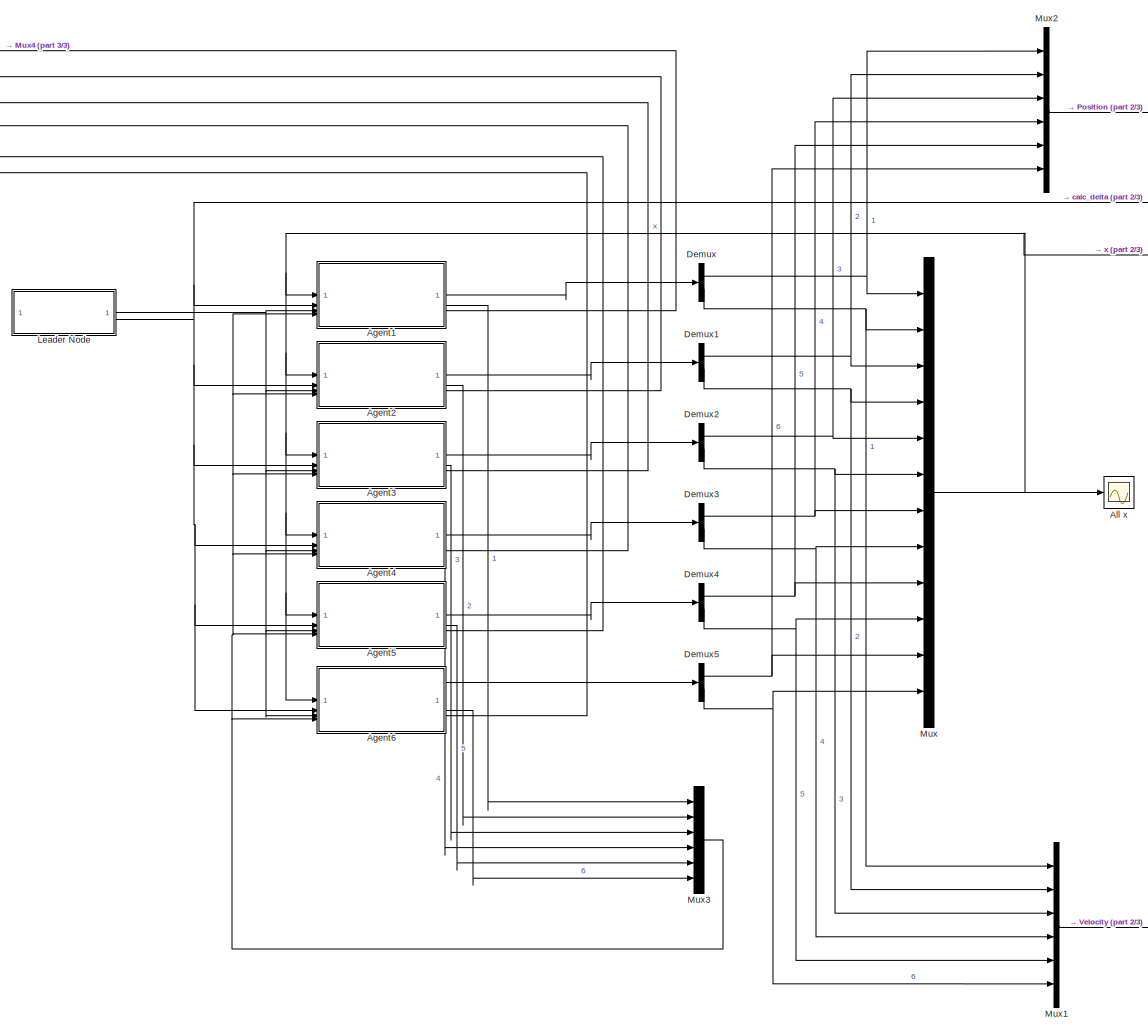
[diagram: root canvas - part 1/3, center side, full height]
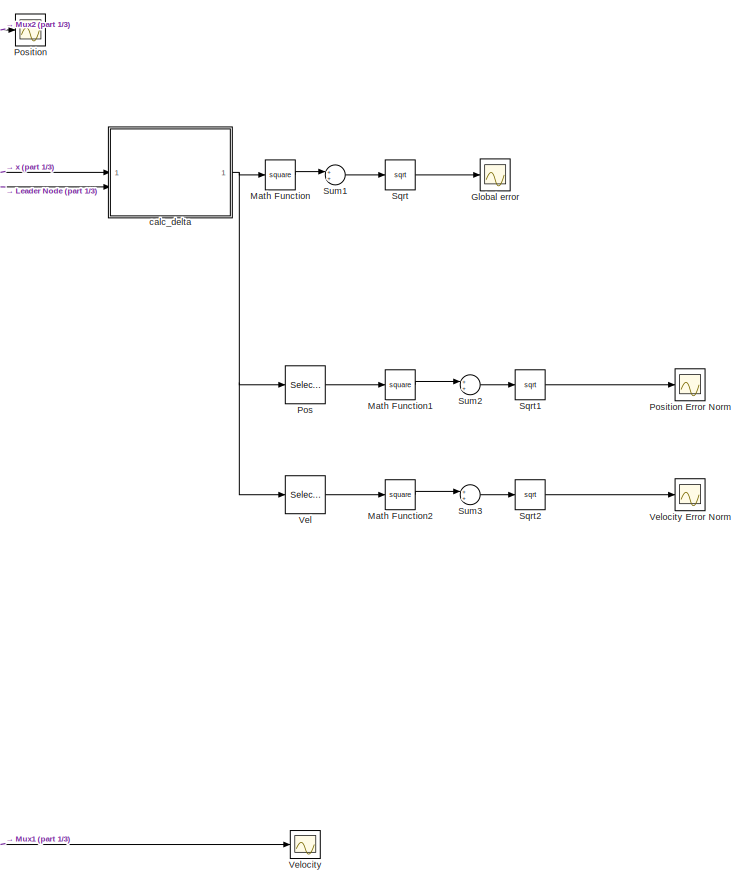
[diagram: root canvas - part 2/3, right side, full height]
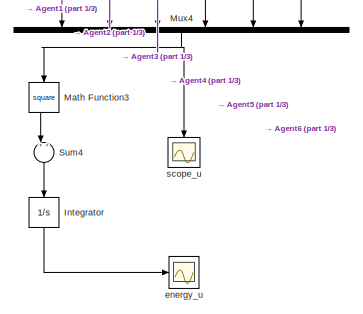
[diagram: root canvas - part 3/3, bottom left region]
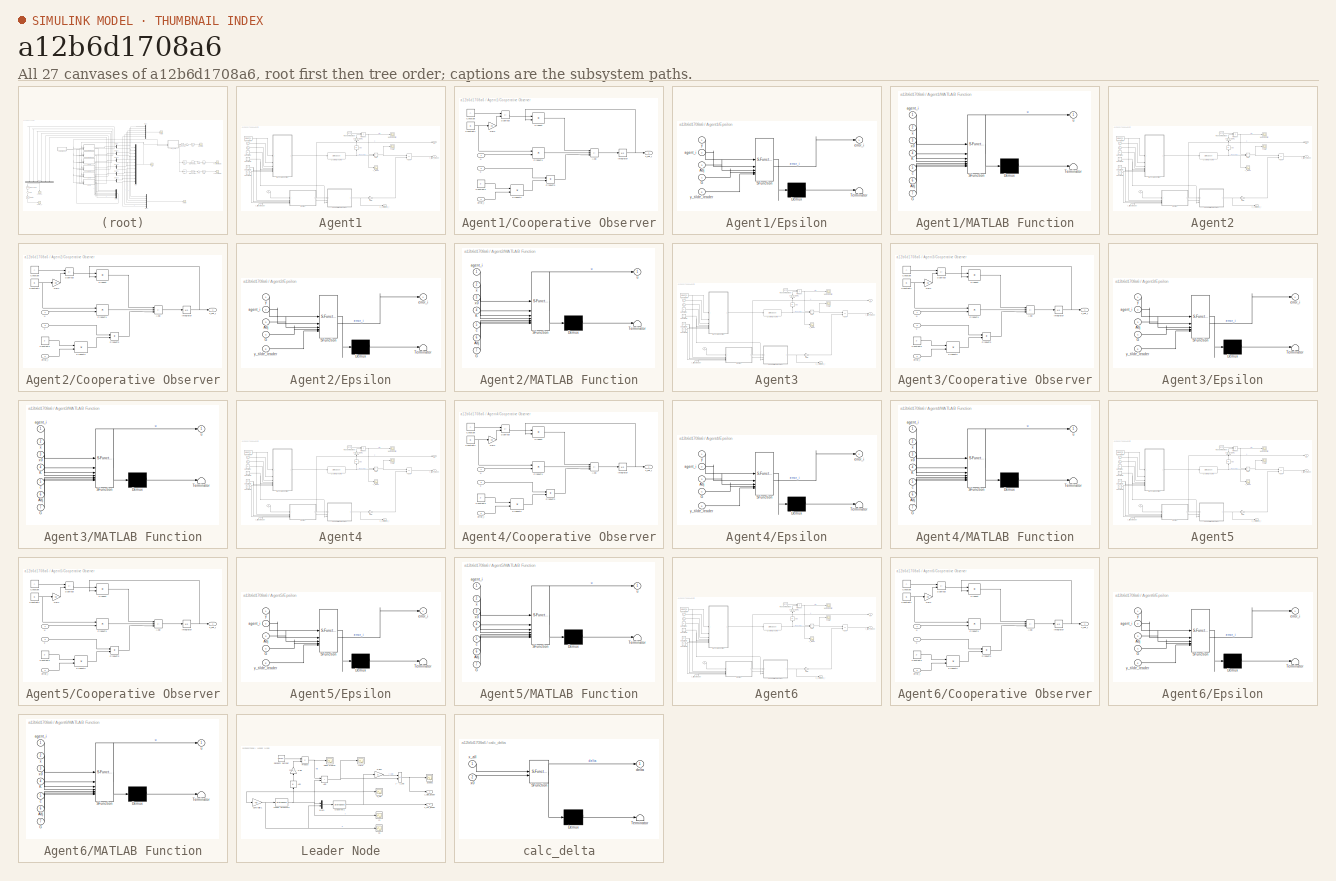
[diagram: thumbnail index - all 27 canvases of the model, root first then tree order]
MODEL slx_a12b6d1708a6
KIND model
CONFIG AbsTol = auto
CONFIG EnableMultiTasking = off
CONFIG FixedStep = auto
CONFIG MaxStep = auto
CONFIG MinStep = auto
CONFIG RelTol = 1e-3
CONFIG SampleTimeConstraint = Unconstrained
CONFIG SolverName = VariableStepAuto
CONFIG StartTime = 0.0
CONFIG StopTime = 20
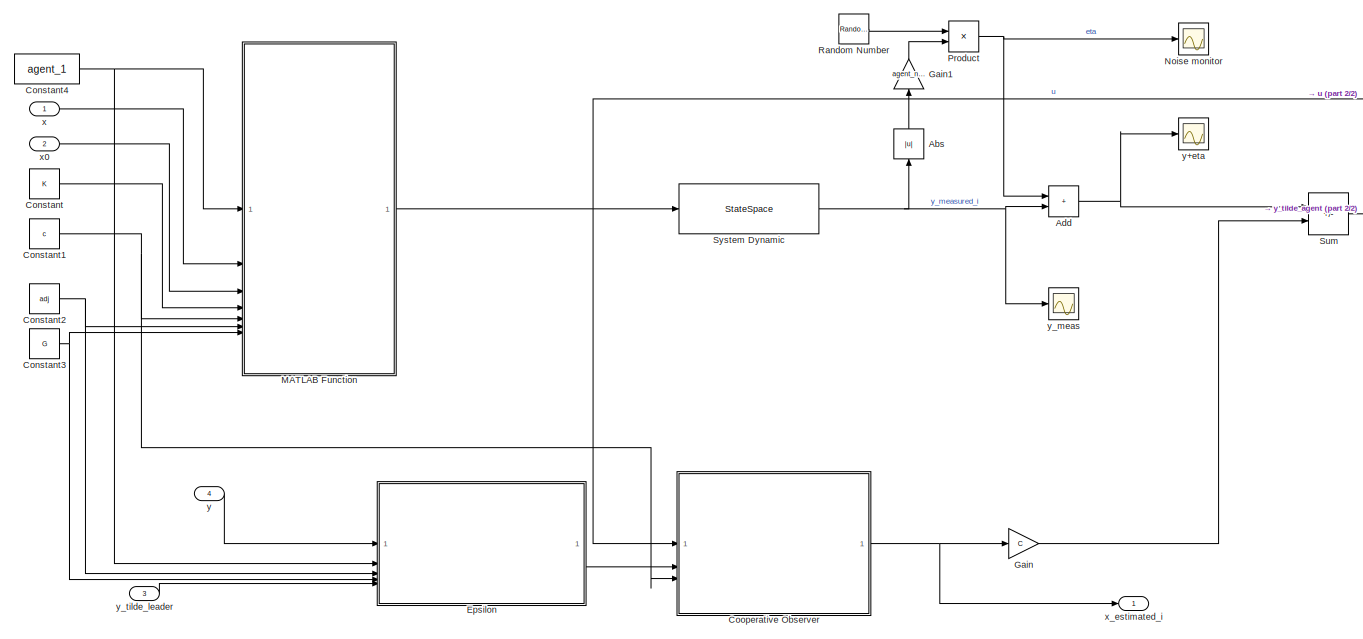
[diagram: Agent1 - part 1/2, most of the canvas]
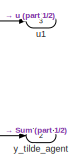
[diagram: Agent1 - part 2/2, top right region]
BLOCK [SubSystem] Agent1
BLOCK [Abs] Agent1/Abs
  NameLocation = right
  SaturateOnIntegerOverflow = off
BLOCK [Sum] Agent1/Add
  IconShape = rectangular
BLOCK [Constant] Agent1/Constant
  Value = K
  VectorParams1D = off
BLOCK [Constant] Agent1/Constant1
  Value = c
BLOCK [Constant] Agent1/Constant2
  Value = adj
BLOCK [Constant] Agent1/Constant3
  Value = G
BLOCK [Constant] Agent1/Constant4
  Value = agent_1
  VectorParams1D = off
BLOCK [SubSystem] Agent1/Cooperative Observer
BLOCK [Sum] Agent1/Cooperative Observer/Add
  IconShape = rectangular
  Inputs = ++-
BLOCK [Constant] Agent1/Cooperative Observer/Constant
  Value = A
BLOCK [Constant] Agent1/Cooperative Observer/Constant1
  Value = B
BLOCK [Constant] Agent1/Cooperative Observer/Constant2
  Value = F
BLOCK [Gain] Agent1/Cooperative Observer/Gain
  Gain = K0
  Multiplication = Matrix(u*K)
BLOCK [Integrator] Agent1/Cooperative Observer/Integrator
BLOCK [Product] Agent1/Cooperative Observer/Product
  Multiplication = Matrix(*)
BLOCK [Product] Agent1/Cooperative Observer/Product1
  Multiplication = Matrix(*)
BLOCK [Product] Agent1/Cooperative Observer/Product2
  Multiplication = Matrix(*)
BLOCK [Product] Agent1/Cooperative Observer/Product3
BLOCK [Sum] Agent1/Cooperative Observer/Subtract
  IconShape = rectangular
  Inputs = +-
BLOCK [Inport] Agent1/Cooperative Observer/c
  Port = 3
BLOCK [Inport] Agent1/Cooperative Observer/error_i
  Port = 2
BLOCK [Inport] Agent1/Cooperative Observer/u
BLOCK [Outport] Agent1/Cooperative Observer/x_hat_i
BLOCK [SubSystem] Agent1/Epsilon
  ErrorFcn = Stateflow.Translate.translate
  PermitHierarchicalResolution = ExplicitOnly
  SFBlockType = MATLAB Function
  TreatAsAtomicUnit = on
BLOCK [Demux] Agent1/Epsilon/ Demux 
  Outputs = 1
BLOCK [S-Function] Agent1/Epsilon/ SFunction 
  EnableBusSupport = on
  FunctionName = sf_sfun
  PortCounts = [5 2]
  SFcnIsStateOwnerBlock = off
  SFunctionDeploymentMode = off
  Tag = Stateflow S-Function 1
BLOCK [Terminator] Agent1/Epsilon/ Terminator 
BLOCK [Inport] Agent1/Epsilon/Adj
  Port = 3
BLOCK [Inport] Agent1/Epsilon/G
  Port = 4
BLOCK [Inport] Agent1/Epsilon/agent_i
  Port = 2
BLOCK [Outport] Agent1/Epsilon/error_i
BLOCK [Inport] Agent1/Epsilon/y
BLOCK [Inport] Agent1/Epsilon/y_tilde_leader
  Port = 5
BLOCK [Gain] Agent1/Gain
  Gain = C
  Multiplication = Matrix(K*u)
BLOCK [Gain] Agent1/Gain1
  Gain = agent_noise_sensitivity_1
  NameLocation = right
BLOCK [SubSystem] Agent1/MATLAB Function
  ErrorFcn = Stateflow.Translate.translate
  PermitHierarchicalResolution = ExplicitOnly
  SFBlockType = MATLAB Function
  TreatAsAtomicUnit = on
BLOCK [Demux] Agent1/MATLAB Function/ Demux 
  Outputs = 1
BLOCK [S-Function] Agent1/MATLAB Function/ SFunction 
  EnableBusSupport = on
  FunctionName = sf_sfun
  PortCounts = [7 2]
  SFcnIsStateOwnerBlock = off
  SFunctionDeploymentMode = off
  Tag = Stateflow S-Function 2
BLOCK [Terminator] Agent1/MATLAB Function/ Terminator 
BLOCK [Inport] Agent1/MATLAB Function/Adj
  Port = 6
BLOCK [Inport] Agent1/MATLAB Function/G
  Port = 7
BLOCK [Inport] Agent1/MATLAB Function/K
  Port = 4
BLOCK [Inport] Agent1/MATLAB Function/agent_i
BLOCK [Inport] Agent1/MATLAB Function/c
  Port = 5
BLOCK [Outport] Agent1/MATLAB Function/u
BLOCK [Inport] Agent1/MATLAB Function/x
  Port = 2
BLOCK [Inport] Agent1/MATLAB Function/x0
  Port = 3
BLOCK [Scope] Agent1/Noise monitor
  Floating = off
  NumInputPorts = 1
  ScopeSpecificationString = Simulink.scopes.TimeScopeBlockCfg('CurrentConfiguration', extmgr.ConfigurationSet(extmgr.Configuration('Core','General UI',true),extmgr.Configuration('Core','Source UI',true),extmgr.Configuration('Sources','WiredSimulink',true,'DataLoggingVariableName','ScopeData3'),extmgr.Configuration('Visuals','Time Domain',true,'SerializedDisplays',{struct('MinYLimReal','-476534.99625','MaxYLimReal','401574.17...<+1489ch>  <repeated x6 — deduplicated; at blocks: Noise monitor>
BLOCK [Product] Agent1/Product
BLOCK [RandomNumber] Agent1/Random Number
  SampleTime = noise_ts
BLOCK [Sum] Agent1/Sum
  IconShape = rectangular
  Inputs = +-
BLOCK [StateSpace] Agent1/System  Dynamic
  A = (A-B*K0)
  B = B
  C = C
  D = 0
  InitialCondition = 0
BLOCK [Outport] Agent1/u1
  Port = 3
BLOCK [Inport] Agent1/x
BLOCK [Inport] Agent1/x0
  Port = 2
BLOCK [Outport] Agent1/x_estimated_i
BLOCK [Inport] Agent1/y
  Port = 4
BLOCK [Scope] Agent1/y+eta
  Floating = off
  NumInputPorts = 1
  ScopeSpecificationString = Simulink.scopes.TimeScopeBlockCfg('CurrentConfiguration', extmgr.ConfigurationSet(extmgr.Configuration('Core','General UI',true),extmgr.Configuration('Core','Source UI',true),extmgr.Configuration('Sources','WiredSimulink',true,'DataLoggingVariableName','ScopeData4'),extmgr.Configuration('Visuals','Time Domain',true,'SerializedDisplays',{struct('MinYLimReal','-466148.07533','MaxYLimReal','4195332.6...<+1526ch>
BLOCK [Scope] Agent1/y_meas
  Floating = off
  NumInputPorts = 1
  ScopeSpecificationString = Simulink.scopes.TimeScopeBlockCfg('CurrentConfiguration', extmgr.ConfigurationSet(extmgr.Configuration('Core','General UI',true),extmgr.Configuration('Core','Source UI',true),extmgr.Configuration('Sources','WiredSimulink',true,'DataLoggingVariableName','ScopeData5'),extmgr.Configuration('Visuals','Time Domain',true,'SerializedDisplays',{struct('MinYLimReal','-391714.03776','MaxYLimReal','3525426.3...<+1533ch>
BLOCK [Outport] Agent1/y_tilde_agent
  Port = 2
BLOCK [Inport] Agent1/y_tilde_leader
  Port = 3
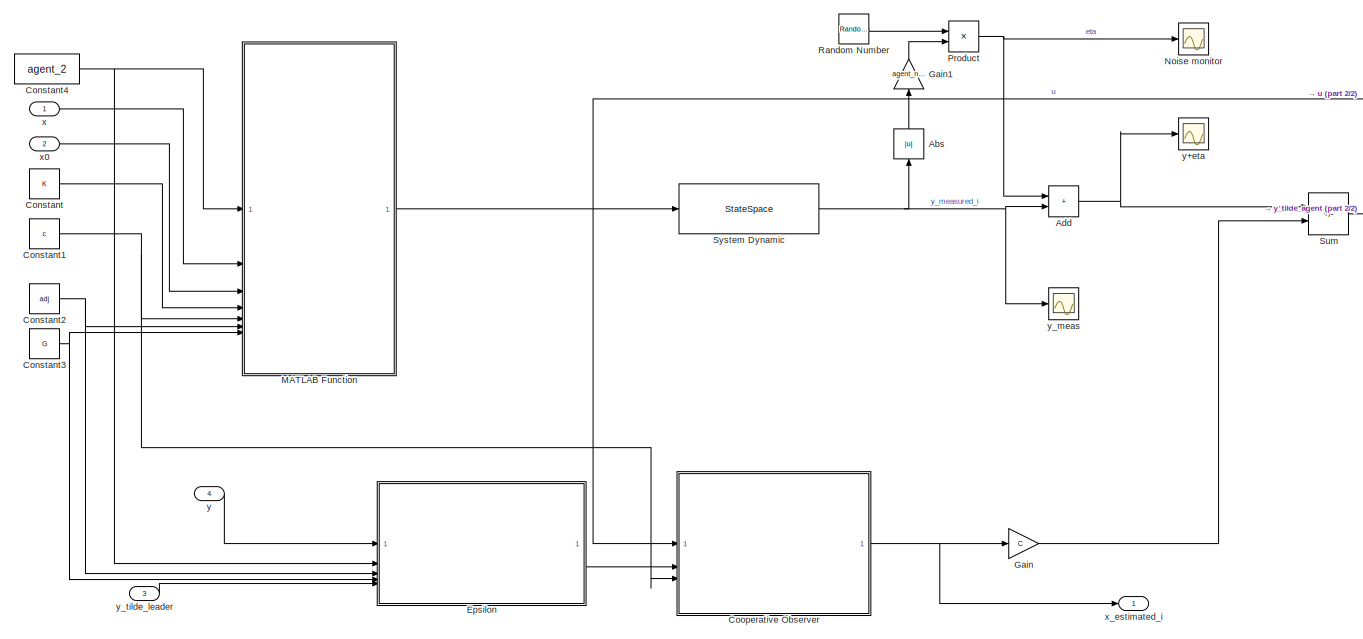
[diagram: Agent2 - part 1/2, most of the canvas]
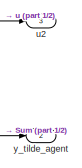
[diagram: Agent2 - part 2/2, top right region]
BLOCK [SubSystem] Agent2
BLOCK [Abs] Agent2/Abs
  NameLocation = right
  SaturateOnIntegerOverflow = off
BLOCK [Sum] Agent2/Add
  IconShape = rectangular
BLOCK [Constant] Agent2/Constant
  Value = K
  VectorParams1D = off
BLOCK [Constant] Agent2/Constant1
  Value = c
BLOCK [Constant] Agent2/Constant2
  Value = adj
BLOCK [Constant] Agent2/Constant3
  Value = G
BLOCK [Constant] Agent2/Constant4
  Value = agent_2
  VectorParams1D = off
BLOCK [SubSystem] Agent2/Cooperative Observer
BLOCK [Sum] Agent2/Cooperative Observer/Add
  IconShape = rectangular
  Inputs = ++-
BLOCK [Constant] Agent2/Cooperative Observer/Constant
  Value = A
BLOCK [Constant] Agent2/Cooperative Observer/Constant1
  Value = B
BLOCK [Constant] Agent2/Cooperative Observer/Constant2
  Value = F
BLOCK [Gain] Agent2/Cooperative Observer/Gain
  Gain = K0
  Multiplication = Matrix(u*K)
BLOCK [Integrator] Agent2/Cooperative Observer/Integrator
BLOCK [Product] Agent2/Cooperative Observer/Product
  Multiplication = Matrix(*)
BLOCK [Product] Agent2/Cooperative Observer/Product1
  Multiplication = Matrix(*)
BLOCK [Product] Agent2/Cooperative Observer/Product2
  Multiplication = Matrix(*)
BLOCK [Product] Agent2/Cooperative Observer/Product3
BLOCK [Sum] Agent2/Cooperative Observer/Subtract
  IconShape = rectangular
  Inputs = +-
BLOCK [Inport] Agent2/Cooperative Observer/c
  Port = 3
BLOCK [Inport] Agent2/Cooperative Observer/error_i
  Port = 2
BLOCK [Inport] Agent2/Cooperative Observer/u
BLOCK [Outport] Agent2/Cooperative Observer/x_hat_i
BLOCK [SubSystem] Agent2/Epsilon
  ErrorFcn = Stateflow.Translate.translate
  PermitHierarchicalResolution = ExplicitOnly
  SFBlockType = MATLAB Function
  TreatAsAtomicUnit = on
BLOCK [Demux] Agent2/Epsilon/ Demux 
  Outputs = 1
BLOCK [S-Function] Agent2/Epsilon/ SFunction 
  EnableBusSupport = on
  FunctionName = sf_sfun
  PortCounts = [5 2]
  SFcnIsStateOwnerBlock = off
  SFunctionDeploymentMode = off
  Tag = Stateflow S-Function 3
BLOCK [Terminator] Agent2/Epsilon/ Terminator 
BLOCK [Inport] Agent2/Epsilon/Adj
  Port = 3
BLOCK [Inport] Agent2/Epsilon/G
  Port = 4
BLOCK [Inport] Agent2/Epsilon/agent_i
  Port = 2
BLOCK [Outport] Agent2/Epsilon/error_i
BLOCK [Inport] Agent2/Epsilon/y
BLOCK [Inport] Agent2/Epsilon/y_tilde_leader
  Port = 5
BLOCK [Gain] Agent2/Gain
  Gain = C
  Multiplication = Matrix(K*u)
BLOCK [Gain] Agent2/Gain1
  Gain = agent_noise_sensitivity_2
  NameLocation = right
BLOCK [SubSystem] Agent2/MATLAB Function
  ErrorFcn = Stateflow.Translate.translate
  PermitHierarchicalResolution = ExplicitOnly
  SFBlockType = MATLAB Function
  TreatAsAtomicUnit = on
BLOCK [Demux] Agent2/MATLAB Function/ Demux 
  Outputs = 1
BLOCK [S-Function] Agent2/MATLAB Function/ SFunction 
  EnableBusSupport = on
  FunctionName = sf_sfun
  PortCounts = [7 2]
  SFcnIsStateOwnerBlock = off
  SFunctionDeploymentMode = off
  Tag = Stateflow S-Function 4
BLOCK [Terminator] Agent2/MATLAB Function/ Terminator 
BLOCK [Inport] Agent2/MATLAB Function/Adj
  Port = 6
BLOCK [Inport] Agent2/MATLAB Function/G
  Port = 7
BLOCK [Inport] Agent2/MATLAB Function/K
  Port = 4
BLOCK [Inport] Agent2/MATLAB Function/agent_i
BLOCK [Inport] Agent2/MATLAB Function/c
  Port = 5
BLOCK [Outport] Agent2/MATLAB Function/u
BLOCK [Inport] Agent2/MATLAB Function/x
  Port = 2
BLOCK [Inport] Agent2/MATLAB Function/x0
  Port = 3
BLOCK [Scope] Agent2/Noise monitor
  Floating = off
  NumInputPorts = 1
BLOCK [Product] Agent2/Product
BLOCK [RandomNumber] Agent2/Random Number
  SampleTime = noise_ts
BLOCK [Sum] Agent2/Sum
  IconShape = rectangular
  Inputs = +-
BLOCK [StateSpace] Agent2/System  Dynamic
  A = (A-B*K0)
  B = B
  C = C
  D = 0
  InitialCondition = 0
BLOCK [Outport] Agent2/u2
  Port = 3
BLOCK [Inport] Agent2/x
BLOCK [Inport] Agent2/x0
  Port = 2
BLOCK [Outport] Agent2/x_estimated_i
BLOCK [Inport] Agent2/y
  Port = 4
BLOCK [Scope] Agent2/y+eta
  Floating = off
  NumInputPorts = 1
  ScopeSpecificationString = Simulink.scopes.TimeScopeBlockCfg('CurrentConfiguration', extmgr.ConfigurationSet(extmgr.Configuration('Core','General UI',true),extmgr.Configuration('Core','Source UI',true),extmgr.Configuration('Sources','WiredSimulink',true,'DataLoggingVariableName','ScopeData4'),extmgr.Configuration('Visuals','Time Domain',true,'SerializedDisplays',{struct('MinYLimReal','-400477.85291','MaxYLimReal','3604300.6...<+1524ch>
BLOCK [Scope] Agent2/y_meas
  Floating = off
  NumInputPorts = 1
  ScopeSpecificationString = Simulink.scopes.TimeScopeBlockCfg('CurrentConfiguration', extmgr.ConfigurationSet(extmgr.Configuration('Core','General UI',true),extmgr.Configuration('Core','Source UI',true),extmgr.Configuration('Sources','WiredSimulink',true,'DataLoggingVariableName','ScopeData5'),extmgr.Configuration('Visuals','Time Domain',true,'SerializedDisplays',{struct('MinYLimReal','-400477.85291','MaxYLimReal','3604300.6...<+1533ch>
BLOCK [Outport] Agent2/y_tilde_agent
  Port = 2
BLOCK [Inport] Agent2/y_tilde_leader
  Port = 3
BLOCK [SubSystem] Agent3
BLOCK [Abs] Agent3/Abs
  NameLocation = right
  SaturateOnIntegerOverflow = off
BLOCK [Sum] Agent3/Add
  IconShape = rectangular
BLOCK [Constant] Agent3/Constant
  Value = K
  VectorParams1D = off
BLOCK [Constant] Agent3/Constant1
  Value = c
BLOCK [Constant] Agent3/Constant2
  Value = adj
BLOCK [Constant] Agent3/Constant3
  Value = G
BLOCK [Constant] Agent3/Constant4
  Value = agent_3
  VectorParams1D = off
BLOCK [SubSystem] Agent3/Cooperative Observer
BLOCK [Sum] Agent3/Cooperative Observer/Add
  IconShape = rectangular
  Inputs = ++-
BLOCK [Constant] Agent3/Cooperative Observer/Constant
  Value = A
BLOCK [Constant] Agent3/Cooperative Observer/Constant1
  Value = B
BLOCK [Constant] Agent3/Cooperative Observer/Constant2
  Value = F
BLOCK [Gain] Agent3/Cooperative Observer/Gain
  Gain = K0
  Multiplication = Matrix(u*K)
BLOCK [Integrator] Agent3/Cooperative Observer/Integrator
BLOCK [Product] Agent3/Cooperative Observer/Product
  Multiplication = Matrix(*)
BLOCK [Product] Agent3/Cooperative Observer/Product1
  Multiplication = Matrix(*)
BLOCK [Product] Agent3/Cooperative Observer/Product2
  Multiplication = Matrix(*)
BLOCK [Product] Agent3/Cooperative Observer/Product3
BLOCK [Sum] Agent3/Cooperative Observer/Subtract
  IconShape = rectangular
  Inputs = +-
BLOCK [Inport] Agent3/Cooperative Observer/c
  Port = 3
BLOCK [Inport] Agent3/Cooperative Observer/error_i
  Port = 2
BLOCK [Inport] Agent3/Cooperative Observer/u
BLOCK [Outport] Agent3/Cooperative Observer/x_hat_i
BLOCK [SubSystem] Agent3/Epsilon
  ErrorFcn = Stateflow.Translate.translate
  PermitHierarchicalResolution = ExplicitOnly
  SFBlockType = MATLAB Function
  TreatAsAtomicUnit = on
BLOCK [Demux] Agent3/Epsilon/ Demux 
  Outputs = 1
BLOCK [S-Function] Agent3/Epsilon/ SFunction 
  EnableBusSupport = on
  FunctionName = sf_sfun
  PortCounts = [5 2]
  SFcnIsStateOwnerBlock = off
  SFunctionDeploymentMode = off
  Tag = Stateflow S-Function 5
BLOCK [Terminator] Agent3/Epsilon/ Terminator 
BLOCK [Inport] Agent3/Epsilon/Adj
  Port = 3
BLOCK [Inport] Agent3/Epsilon/G
  Port = 4
BLOCK [Inport] Agent3/Epsilon/agent_i
  Port = 2
BLOCK [Outport] Agent3/Epsilon/error_i
BLOCK [Inport] Agent3/Epsilon/y
BLOCK [Inport] Agent3/Epsilon/y_tilde_leader
  Port = 5
BLOCK [Gain] Agent3/Gain
  Gain = C
  Multiplication = Matrix(K*u)
BLOCK [Gain] Agent3/Gain1
  Gain = agent_noise_sensitivity_3
  NameLocation = right
BLOCK [SubSystem] Agent3/MATLAB Function
  ErrorFcn = Stateflow.Translate.translate
  PermitHierarchicalResolution = ExplicitOnly
  SFBlockType = MATLAB Function
  TreatAsAtomicUnit = on
BLOCK [Demux] Agent3/MATLAB Function/ Demux 
  Outputs = 1
BLOCK [S-Function] Agent3/MATLAB Function/ SFunction 
  EnableBusSupport = on
  FunctionName = sf_sfun
  PortCounts = [7 2]
  SFcnIsStateOwnerBlock = off
  SFunctionDeploymentMode = off
  Tag = Stateflow S-Function 6
BLOCK [Terminator] Agent3/MATLAB Function/ Terminator 
BLOCK [Inport] Agent3/MATLAB Function/Adj
  Port = 6
BLOCK [Inport] Agent3/MATLAB Function/G
  Port = 7
BLOCK [Inport] Agent3/MATLAB Function/K
  Port = 4
BLOCK [Inport] Agent3/MATLAB Function/agent_i
BLOCK [Inport] Agent3/MATLAB Function/c
  Port = 5
BLOCK [Outport] Agent3/MATLAB Function/u
BLOCK [Inport] Agent3/MATLAB Function/x
  Port = 2
BLOCK [Inport] Agent3/MATLAB Function/x0
  Port = 3
BLOCK [Scope] Agent3/Noise monitor
  Floating = off
  NumInputPorts = 1
BLOCK [Product] Agent3/Product
BLOCK [RandomNumber] Agent3/Random Number
  SampleTime = noise_ts
BLOCK [Sum] Agent3/Sum
  IconShape = rectangular
  Inputs = +-
BLOCK [StateSpace] Agent3/System  Dynamic
  A = (A-B*K0)
  B = B
  C = C
  D = 0
  InitialCondition = 0
BLOCK [Outport] Agent3/u3
  Port = 3
BLOCK [Inport] Agent3/x
BLOCK [Inport] Agent3/x0
  Port = 2
BLOCK [Outport] Agent3/x_estimated_i
BLOCK [Inport] Agent3/y
  Port = 4
BLOCK [Scope] Agent3/y+eta
  Floating = off
  NumInputPorts = 1
  ScopeSpecificationString = Simulink.scopes.TimeScopeBlockCfg('CurrentConfiguration', extmgr.ConfigurationSet(extmgr.Configuration('Core','General UI',true),extmgr.Configuration('Core','Source UI',true),extmgr.Configuration('Sources','WiredSimulink',true,'DataLoggingVariableName','ScopeData4'),extmgr.Configuration('Visuals','Time Domain',true,'SerializedDisplays',{struct('MinYLimReal','-427003.58369','MaxYLimReal','3843032.2...<+1526ch>  <repeated x4 — deduplicated; at blocks: y+eta>
BLOCK [Scope] Agent3/y_meas
  Floating = off
  NumInputPorts = 1
  ScopeSpecificationString = Simulink.scopes.TimeScopeBlockCfg('CurrentConfiguration', extmgr.ConfigurationSet(extmgr.Configuration('Core','General UI',true),extmgr.Configuration('Core','Source UI',true),extmgr.Configuration('Sources','WiredSimulink',true,'DataLoggingVariableName','ScopeData5'),extmgr.Configuration('Visuals','Time Domain',true,'SerializedDisplays',{struct('MinYLimReal','-391713.31708','MaxYLimReal','3525419.8...<+1533ch>  <repeated x4 — deduplicated; at blocks: y_meas>
BLOCK [Outport] Agent3/y_tilde_agent
  Port = 2
BLOCK [Inport] Agent3/y_tilde_leader
  Port = 3
BLOCK [SubSystem] Agent4
BLOCK [Abs] Agent4/Abs
  NameLocation = right
  SaturateOnIntegerOverflow = off
BLOCK [Sum] Agent4/Add
  IconShape = rectangular
BLOCK [Constant] Agent4/Constant
  Value = K
  VectorParams1D = off
BLOCK [Constant] Agent4/Constant1
  Value = c
BLOCK [Constant] Agent4/Constant2
  Value = adj
BLOCK [Constant] Agent4/Constant3
  Value = G
BLOCK [Constant] Agent4/Constant4
  Value = agent_4
  VectorParams1D = off
BLOCK [SubSystem] Agent4/Cooperative Observer
BLOCK [Sum] Agent4/Cooperative Observer/Add
  IconShape = rectangular
  Inputs = ++-
BLOCK [Constant] Agent4/Cooperative Observer/Constant
  Value = A
BLOCK [Constant] Agent4/Cooperative Observer/Constant1
  Value = B
BLOCK [Constant] Agent4/Cooperative Observer/Constant2
  Value = F
BLOCK [Gain] Agent4/Cooperative Observer/Gain
  Gain = K0
  Multiplication = Matrix(u*K)
BLOCK [Integrator] Agent4/Cooperative Observer/Integrator
BLOCK [Product] Agent4/Cooperative Observer/Product
  Multiplication = Matrix(*)
BLOCK [Product] Agent4/Cooperative Observer/Product1
  Multiplication = Matrix(*)
BLOCK [Product] Agent4/Cooperative Observer/Product2
  Multiplication = Matrix(*)
BLOCK [Product] Agent4/Cooperative Observer/Product3
BLOCK [Sum] Agent4/Cooperative Observer/Subtract
  IconShape = rectangular
  Inputs = +-
BLOCK [Inport] Agent4/Cooperative Observer/c
  Port = 3
BLOCK [Inport] Agent4/Cooperative Observer/error_i
  Port = 2
BLOCK [Inport] Agent4/Cooperative Observer/u
BLOCK [Outport] Agent4/Cooperative Observer/x_hat_i
BLOCK [SubSystem] Agent4/Epsilon
  ErrorFcn = Stateflow.Translate.translate
  PermitHierarchicalResolution = ExplicitOnly
  SFBlockType = MATLAB Function
  TreatAsAtomicUnit = on
BLOCK [Demux] Agent4/Epsilon/ Demux 
  Outputs = 1
BLOCK [S-Function] Agent4/Epsilon/ SFunction 
  EnableBusSupport = on
  FunctionName = sf_sfun
  PortCounts = [5 2]
  SFcnIsStateOwnerBlock = off
  SFunctionDeploymentMode = off
  Tag = Stateflow S-Function 7
BLOCK [Terminator] Agent4/Epsilon/ Terminator 
BLOCK [Inport] Agent4/Epsilon/Adj
  Port = 3
BLOCK [Inport] Agent4/Epsilon/G
  Port = 4
BLOCK [Inport] Agent4/Epsilon/agent_i
  Port = 2
BLOCK [Outport] Agent4/Epsilon/error_i
BLOCK [Inport] Agent4/Epsilon/y
BLOCK [Inport] Agent4/Epsilon/y_tilde_leader
  Port = 5
BLOCK [Gain] Agent4/Gain
  Gain = C
  Multiplication = Matrix(K*u)
BLOCK [Gain] Agent4/Gain1
  Gain = agent_noise_sensitivity_4
  NameLocation = right
BLOCK [SubSystem] Agent4/MATLAB Function
  ErrorFcn = Stateflow.Translate.translate
  PermitHierarchicalResolution = ExplicitOnly
  SFBlockType = MATLAB Function
  TreatAsAtomicUnit = on
BLOCK [Demux] Agent4/MATLAB Function/ Demux 
  Outputs = 1
BLOCK [S-Function] Agent4/MATLAB Function/ SFunction 
  EnableBusSupport = on
  FunctionName = sf_sfun
  PortCounts = [7 2]
  SFcnIsStateOwnerBlock = off
  SFunctionDeploymentMode = off
  Tag = Stateflow S-Function 8
BLOCK [Terminator] Agent4/MATLAB Function/ Terminator 
BLOCK [Inport] Agent4/MATLAB Function/Adj
  Port = 6
BLOCK [Inport] Agent4/MATLAB Function/G
  Port = 7
BLOCK [Inport] Agent4/MATLAB Function/K
  Port = 4
BLOCK [Inport] Agent4/MATLAB Function/agent_i
BLOCK [Inport] Agent4/MATLAB Function/c
  Port = 5
BLOCK [Outport] Agent4/MATLAB Function/u
BLOCK [Inport] Agent4/MATLAB Function/x
  Port = 2
BLOCK [Inport] Agent4/MATLAB Function/x0
  Port = 3
BLOCK [Scope] Agent4/Noise monitor
  Floating = off
  NumInputPorts = 1
BLOCK [Product] Agent4/Product
BLOCK [RandomNumber] Agent4/Random Number
  SampleTime = noise_ts
BLOCK [Sum] Agent4/Sum
  IconShape = rectangular
  Inputs = +-
BLOCK [StateSpace] Agent4/System  Dynamic
  A = (A-B*K0)
  B = B
  C = C
  D = 0
  InitialCondition = 0
BLOCK [Outport] Agent4/u4
  Port = 3
BLOCK [Inport] Agent4/x
BLOCK [Inport] Agent4/x0
  Port = 2
BLOCK [Outport] Agent4/x_estimated_i
BLOCK [Inport] Agent4/y
  Port = 4
BLOCK [Scope] Agent4/y+eta
  Floating = off
  NumInputPorts = 1
BLOCK [Scope] Agent4/y_meas
  Floating = off
  NumInputPorts = 1
BLOCK [Outport] Agent4/y_tilde_agent
  Port = 2
BLOCK [Inport] Agent4/y_tilde_leader
  Port = 3
BLOCK [SubSystem] Agent5
BLOCK [Abs] Agent5/Abs
  NameLocation = right
  SaturateOnIntegerOverflow = off
BLOCK [Sum] Agent5/Add
  IconShape = rectangular
BLOCK [Constant] Agent5/Constant
  Value = K
  VectorParams1D = off
BLOCK [Constant] Agent5/Constant1
  Value = c
BLOCK [Constant] Agent5/Constant2
  Value = adj
BLOCK [Constant] Agent5/Constant3
  Value = G
BLOCK [Constant] Agent5/Constant4
  Value = agent_5
  VectorParams1D = off
BLOCK [SubSystem] Agent5/Cooperative Observer
BLOCK [Sum] Agent5/Cooperative Observer/Add
  IconShape = rectangular
  Inputs = ++-
BLOCK [Constant] Agent5/Cooperative Observer/Constant
  Value = A
BLOCK [Constant] Agent5/Cooperative Observer/Constant1
  Value = B
BLOCK [Constant] Agent5/Cooperative Observer/Constant2
  Value = F
BLOCK [Gain] Agent5/Cooperative Observer/Gain
  Gain = K0
  Multiplication = Matrix(u*K)
BLOCK [Integrator] Agent5/Cooperative Observer/Integrator
BLOCK [Product] Agent5/Cooperative Observer/Product
  Multiplication = Matrix(*)
BLOCK [Product] Agent5/Cooperative Observer/Product1
  Multiplication = Matrix(*)
BLOCK [Product] Agent5/Cooperative Observer/Product2
  Multiplication = Matrix(*)
BLOCK [Product] Agent5/Cooperative Observer/Product3
BLOCK [Sum] Agent5/Cooperative Observer/Subtract
  IconShape = rectangular
  Inputs = +-
BLOCK [Inport] Agent5/Cooperative Observer/c
  Port = 3
BLOCK [Inport] Agent5/Cooperative Observer/error_i
  Port = 2
BLOCK [Inport] Agent5/Cooperative Observer/u
BLOCK [Outport] Agent5/Cooperative Observer/x_hat_i
BLOCK [SubSystem] Agent5/Epsilon
  ErrorFcn = Stateflow.Translate.translate
  PermitHierarchicalResolution = ExplicitOnly
  SFBlockType = MATLAB Function
  TreatAsAtomicUnit = on
BLOCK [Demux] Agent5/Epsilon/ Demux 
  Outputs = 1
BLOCK [S-Function] Agent5/Epsilon/ SFunction 
  EnableBusSupport = on
  FunctionName = sf_sfun
  PortCounts = [5 2]
  SFcnIsStateOwnerBlock = off
  SFunctionDeploymentMode = off
  Tag = Stateflow S-Function 9
BLOCK [Terminator] Agent5/Epsilon/ Terminator 
BLOCK [Inport] Agent5/Epsilon/Adj
  Port = 3
BLOCK [Inport] Agent5/Epsilon/G
  Port = 4
BLOCK [Inport] Agent5/Epsilon/agent_i
  Port = 2
BLOCK [Outport] Agent5/Epsilon/error_i
BLOCK [Inport] Agent5/Epsilon/y
BLOCK [Inport] Agent5/Epsilon/y_tilde_leader
  Port = 5
BLOCK [Gain] Agent5/Gain
  Gain = C
  Multiplication = Matrix(K*u)
BLOCK [Gain] Agent5/Gain1
  Gain = agent_noise_sensitivity_5
  NameLocation = right
BLOCK [SubSystem] Agent5/MATLAB Function
  ErrorFcn = Stateflow.Translate.translate
  PermitHierarchicalResolution = ExplicitOnly
  SFBlockType = MATLAB Function
  TreatAsAtomicUnit = on
BLOCK [Demux] Agent5/MATLAB Function/ Demux 
  Outputs = 1
BLOCK [S-Function] Agent5/MATLAB Function/ SFunction 
  EnableBusSupport = on
  FunctionName = sf_sfun
  PortCounts = [7 2]
  SFcnIsStateOwnerBlock = off
  SFunctionDeploymentMode = off
  Tag = Stateflow S-Function 10
BLOCK [Terminator] Agent5/MATLAB Function/ Terminator 
BLOCK [Inport] Agent5/MATLAB Function/Adj
  Port = 6
BLOCK [Inport] Agent5/MATLAB Function/G
  Port = 7
BLOCK [Inport] Agent5/MATLAB Function/K
  Port = 4
BLOCK [Inport] Agent5/MATLAB Function/agent_i
BLOCK [Inport] Agent5/MATLAB Function/c
  Port = 5
BLOCK [Outport] Agent5/MATLAB Function/u
BLOCK [Inport] Agent5/MATLAB Function/x
  Port = 2
BLOCK [Inport] Agent5/MATLAB Function/x0
  Port = 3
BLOCK [Scope] Agent5/Noise monitor
  Floating = off
  NumInputPorts = 1
BLOCK [Product] Agent5/Product
BLOCK [RandomNumber] Agent5/Random Number
  SampleTime = noise_ts
BLOCK [Sum] Agent5/Sum
  IconShape = rectangular
  Inputs = +-
BLOCK [StateSpace] Agent5/System  Dynamic
  A = (A-B*K0)
  B = B
  C = C
  D = 0
  InitialCondition = 0
BLOCK [Outport] Agent5/u5
  Port = 3
BLOCK [Inport] Agent5/x
BLOCK [Inport] Agent5/x0
  Port = 2
BLOCK [Outport] Agent5/x_estimated_i
BLOCK [Inport] Agent5/y
  Port = 4
BLOCK [Scope] Agent5/y+eta
  Floating = off
  NumInputPorts = 1
BLOCK [Scope] Agent5/y_meas
  Floating = off
  NumInputPorts = 1
BLOCK [Outport] Agent5/y_tilde_agent
  Port = 2
BLOCK [Inport] Agent5/y_tilde_leader
  Port = 3
BLOCK [SubSystem] Agent6
BLOCK [Abs] Agent6/Abs
  NameLocation = right
  SaturateOnIntegerOverflow = off
BLOCK [Sum] Agent6/Add
  IconShape = rectangular
BLOCK [Constant] Agent6/Constant
  Value = K
  VectorParams1D = off
BLOCK [Constant] Agent6/Constant1
  Value = c
BLOCK [Constant] Agent6/Constant2
  Value = adj
BLOCK [Constant] Agent6/Constant3
  Value = G
BLOCK [Constant] Agent6/Constant4
  Value = agent_6
  VectorParams1D = off
BLOCK [SubSystem] Agent6/Cooperative Observer
BLOCK [Sum] Agent6/Cooperative Observer/Add
  IconShape = rectangular
  Inputs = ++-
BLOCK [Constant] Agent6/Cooperative Observer/Constant
  Value = A
BLOCK [Constant] Agent6/Cooperative Observer/Constant1
  Value = B
BLOCK [Constant] Agent6/Cooperative Observer/Constant2
  Value = F
BLOCK [Gain] Agent6/Cooperative Observer/Gain
  Gain = K0
  Multiplication = Matrix(u*K)
BLOCK [Integrator] Agent6/Cooperative Observer/Integrator
BLOCK [Product] Agent6/Cooperative Observer/Product
  Multiplication = Matrix(*)
BLOCK [Product] Agent6/Cooperative Observer/Product1
  Multiplication = Matrix(*)
BLOCK [Product] Agent6/Cooperative Observer/Product2
  Multiplication = Matrix(*)
BLOCK [Product] Agent6/Cooperative Observer/Product3
BLOCK [Sum] Agent6/Cooperative Observer/Subtract
  IconShape = rectangular
  Inputs = +-
BLOCK [Inport] Agent6/Cooperative Observer/c
  Port = 3
BLOCK [Inport] Agent6/Cooperative Observer/error_i
  Port = 2
BLOCK [Inport] Agent6/Cooperative Observer/u
BLOCK [Outport] Agent6/Cooperative Observer/x_hat_i
BLOCK [SubSystem] Agent6/Epsilon
  ErrorFcn = Stateflow.Translate.translate
  PermitHierarchicalResolution = ExplicitOnly
  SFBlockType = MATLAB Function
  TreatAsAtomicUnit = on
BLOCK [Demux] Agent6/Epsilon/ Demux 
  Outputs = 1
BLOCK [S-Function] Agent6/Epsilon/ SFunction 
  EnableBusSupport = on
  FunctionName = sf_sfun
  PortCounts = [5 2]
  SFcnIsStateOwnerBlock = off
  SFunctionDeploymentMode = off
  Tag = Stateflow S-Function 11
BLOCK [Terminator] Agent6/Epsilon/ Terminator 
BLOCK [Inport] Agent6/Epsilon/Adj
  Port = 3
BLOCK [Inport] Agent6/Epsilon/G
  Port = 4
BLOCK [Inport] Agent6/Epsilon/agent_i
  Port = 2
BLOCK [Outport] Agent6/Epsilon/error_i
BLOCK [Inport] Agent6/Epsilon/y
BLOCK [Inport] Agent6/Epsilon/y_tilde_leader
  Port = 5
BLOCK [Gain] Agent6/Gain
  Gain = C
  Multiplication = Matrix(K*u)
BLOCK [Gain] Agent6/Gain1
  Gain = agent_noise_sensitivity_6
  NameLocation = right
BLOCK [SubSystem] Agent6/MATLAB Function
  ErrorFcn = Stateflow.Translate.translate
  PermitHierarchicalResolution = ExplicitOnly
  SFBlockType = MATLAB Function
  TreatAsAtomicUnit = on
BLOCK [Demux] Agent6/MATLAB Function/ Demux 
  Outputs = 1
BLOCK [S-Function] Agent6/MATLAB Function/ SFunction 
  EnableBusSupport = on
  FunctionName = sf_sfun
  PortCounts = [7 2]
  SFcnIsStateOwnerBlock = off
  SFunctionDeploymentMode = off
  Tag = Stateflow S-Function 12
BLOCK [Terminator] Agent6/MATLAB Function/ Terminator 
BLOCK [Inport] Agent6/MATLAB Function/Adj
  Port = 6
BLOCK [Inport] Agent6/MATLAB Function/G
  Port = 7
BLOCK [Inport] Agent6/MATLAB Function/K
  Port = 4
BLOCK [Inport] Agent6/MATLAB Function/agent_i
BLOCK [Inport] Agent6/MATLAB Function/c
  Port = 5
BLOCK [Outport] Agent6/MATLAB Function/u
BLOCK [Inport] Agent6/MATLAB Function/x
  Port = 2
BLOCK [Inport] Agent6/MATLAB Function/x0
  Port = 3
BLOCK [Scope] Agent6/Noise monitor
  Floating = off
  NumInputPorts = 1
BLOCK [Product] Agent6/Product
BLOCK [RandomNumber] Agent6/Random Number
  SampleTime = noise_ts
BLOCK [Sum] Agent6/Sum
  IconShape = rectangular
  Inputs = +-
BLOCK [StateSpace] Agent6/System  Dynamic
  A = (A-B*K0)
  B = B
  C = C
  D = 0
  InitialCondition = 0
BLOCK [Outport] Agent6/u6
  Port = 3
BLOCK [Inport] Agent6/x
BLOCK [Inport] Agent6/x0
  Port = 2
BLOCK [Outport] Agent6/x_estimated_i
BLOCK [Inport] Agent6/y
  Port = 4
BLOCK [Scope] Agent6/y+eta
  Floating = off
  NumInputPorts = 1
BLOCK [Scope] Agent6/y_meas
  Floating = off
  NumInputPorts = 1
BLOCK [Outport] Agent6/y_tilde_agent
  Port = 2
BLOCK [Inport] Agent6/y_tilde_leader
  Port = 3
BLOCK [Scope] All x
  Floating = off
  NumInputPorts = 1
  ScopeSpecificationString = Simulink.scopes.TimeScopeBlockCfg('CurrentConfiguration', extmgr.ConfigurationSet(extmgr.Configuration('Core','General UI',true,'FigureColor',[1 1 1]),extmgr.Configuration('Core','Source UI',true),extmgr.Configuration('Sources','WiredSimulink',true,'DataLoggingVariableName','ScopeData1'),extmgr.Configuration('Visuals','Time Domain',true,'SerializedDisplays',{struct('MinYLimReal','-41466.92929','Ma...<+1761ch>
BLOCK [Demux] Demux
  Outputs = 2
BLOCK [Demux] Demux1
  Outputs = 2
BLOCK [Demux] Demux2
  Outputs = 2
BLOCK [Demux] Demux3
  Outputs = 2
BLOCK [Demux] Demux4
  Outputs = 2
BLOCK [Demux] Demux5
  Outputs = 2
BLOCK [Scope] Global error
  Floating = off
  NumInputPorts = 1
  ScopeSpecificationString = Simulink.scopes.TimeScopeBlockCfg('CurrentConfiguration', extmgr.ConfigurationSet(extmgr.Configuration('Core','General UI',true,'FigureColor',[1 1 1]),extmgr.Configuration('Core','Source UI',true),extmgr.Configuration('Sources','WiredSimulink',true,'DataLoggingVariableName','ScopeData6'),extmgr.Configuration('Visuals','Time Domain',true,'SerializedDisplays',{struct('MinYLimReal','-10781.94718','Ma...<+1645ch>
BLOCK [Integrator] Integrator
  NameLocation = left
BLOCK [SubSystem] Leader Node
BLOCK [Abs] Leader Node/Abs
  NameLocation = right
  SaturateOnIntegerOverflow = off
BLOCK [Sum] Leader Node/Add
  IconShape = rectangular
BLOCK [Gain] Leader Node/Controller1
  Gain = -K0
  Multiplication = Matrix(K*u)
BLOCK [Gain] Leader Node/Gain
  Gain = noise_sensitivity
  NameLocation = right
BLOCK [Gain] Leader Node/Gain1
  Gain = C
  Multiplication = Matrix(K*u)
BLOCK [StateSpace] Leader Node/Leader Dynamics1
  A = A
  B = B
  C = C
  D = D
  InitialCondition = [0 100]'
BLOCK [Mux] Leader Node/Mux1
  DisplayOption = bar
  Inputs = 2
BLOCK [Scope] Leader Node/Noise monitor
  Floating = off
  NumInputPorts = 1
  ScopeSpecificationString = Simulink.scopes.TimeScopeBlockCfg('CurrentConfiguration', extmgr.ConfigurationSet(extmgr.Configuration('Core','General UI',true),extmgr.Configuration('Core','Source UI',true),extmgr.Configuration('Sources','WiredSimulink',true,'DataLoggingVariableName','ScopeData2'),extmgr.Configuration('Visuals','Time Domain',true,'SerializedDisplays',{struct('MinYLimReal','-952940.7643','MaxYLimReal','803133.984...<+1485ch>
BLOCK [StateSpace] Leader Node/Observer1
  A = A0_obv
  B = B0_obv
  C = C0_obv
  D = D0_obv
  InitialCondition = 0
BLOCK [Product] Leader Node/Product
BLOCK [RandomNumber] Leader Node/Random Number
  SampleTime = noise_ts
BLOCK [Scope] Leader Node/Scope2
  Floating = off
  NumInputPorts = 1
  ScopeSpecificationString = Simulink.scopes.TimeScopeBlockCfg('CurrentConfiguration', extmgr.ConfigurationSet(extmgr.Configuration('Core','General UI',true),extmgr.Configuration('Core','Source UI',true),extmgr.Configuration('Sources','WiredSimulink',true,'DataLoggingVariableName','ScopeData5'),extmgr.Configuration('Visuals','Time Domain',true,'SerializedDisplays',{struct('MinYLimReal','-0.36327','MaxYLimReal','0.39669','YLab...<+1510ch>
BLOCK [Scope] Leader Node/u1
  Floating = off
  NumInputPorts = 1
  ScopeSpecificationString = Simulink.scopes.TimeScopeBlockCfg('CurrentConfiguration', extmgr.ConfigurationSet(extmgr.Configuration('Core','General UI',true),extmgr.Configuration('Core','Source UI',true),extmgr.Configuration('Sources','WiredSimulink',true,'DataLoggingVariableName','ScopeData6'),extmgr.Configuration('Visuals','Time Domain',true,'SerializedDisplays',{struct('MinYLimReal','-49038.8158','MaxYLimReal','441349.3422...<+1512ch>
BLOCK [Scope] Leader Node/x_hat
  Floating = off
  NameLocation = right
  NumInputPorts = 1
  ScopeSpecificationString = Simulink.scopes.TimeScopeBlockCfg('CurrentConfiguration', extmgr.ConfigurationSet(extmgr.Configuration('Core','General UI',true),extmgr.Configuration('Core','Source UI',true),extmgr.Configuration('Sources','WiredSimulink',true,'DataLoggingVariableName','ScopeData7'),extmgr.Configuration('Visuals','Time Domain',true,'SerializedDisplays',{struct('MinYLimReal','-553.66368','MaxYLimReal','4982.97316',...<+1608ch>
BLOCK [Outport] Leader Node/x_hat_leader
  Port = 2
BLOCK [Sum] Leader Node/y - y_hat
  IconShape = rectangular
  Inputs = -+
BLOCK [Scope] Leader Node/y+eta
  Floating = off
  NumInputPorts = 1
  ScopeSpecificationString = Simulink.scopes.TimeScopeBlockCfg('CurrentConfiguration', extmgr.ConfigurationSet(extmgr.Configuration('Core','General UI',true),extmgr.Configuration('Core','Source UI',true),extmgr.Configuration('Sources','WiredSimulink',true,'DataLoggingVariableName','ScopeData1'),extmgr.Configuration('Visuals','Time Domain',true,'SerializedDisplays',{struct('MinYLimReal','-467050.99139','MaxYLimReal','4203458.9...<+1523ch>
BLOCK [Scope] Leader Node/y1
  Floating = off
  NumInputPorts = 1
  ScopeSpecificationString = Simulink.scopes.TimeScopeBlockCfg('CurrentConfiguration', extmgr.ConfigurationSet(extmgr.Configuration('Core','General UI',true),extmgr.Configuration('Core','Source UI',true),extmgr.Configuration('Sources','WiredSimulink',true,'DataLoggingVariableName','ScopeData8'),extmgr.Configuration('Visuals','Time Domain',true,'SerializedDisplays',{struct('MinYLimReal','-391792.02125','MaxYLimReal','3526128.1...<+1525ch>
BLOCK [Outport] Leader Node/y_tilde_leader
BLOCK [Math] Math Function
  Operator = square
BLOCK [Math] Math Function1
  Operator = square
BLOCK [Math] Math Function2
  Operator = square
BLOCK [Math] Math Function3
  NameLocation = left
  Operator = square
BLOCK [Mux] Mux
  DisplayOption = bar
  Inputs = 12
BLOCK [Mux] Mux1
  DisplayOption = bar
  Inputs = 6
BLOCK [Mux] Mux2
  DisplayOption = bar
  Inputs = 6
BLOCK [Mux] Mux3
  DisplayOption = bar
  Inputs = 6
BLOCK [Mux] Mux4
  DisplayOption = bar
  Inputs = 6
  NameLocation = left
BLOCK [Selector] Pos
  IndexOptions = Index vector (dialog),Select all
  Indices = [1],1
  InputPortWidth = 3
  NumberOfDimensions = 2
  OutputSizes = 1,1
BLOCK [Scope] Position
  Floating = off
  NumInputPorts = 1
  ScopeSpecificationString = Simulink.scopes.TimeScopeBlockCfg('CurrentConfiguration', extmgr.ConfigurationSet(extmgr.Configuration('Core','General UI',true),extmgr.Configuration('Core','Source UI',true),extmgr.Configuration('Sources','WiredSimulink',true,'DataLoggingVariableName','ScopeData3'),extmgr.Configuration('Visuals','Time Domain',true,'SerializedDisplays',{struct('MinYLimReal','-12023.67334','MaxYLimReal','86747.9693...<+1522ch>
BLOCK [Scope] Position Error Norm 
  Floating = off
  NumInputPorts = 1
  ScopeSpecificationString = Simulink.scopes.TimeScopeBlockCfg('CurrentConfiguration', extmgr.ConfigurationSet(extmgr.Configuration('Core','General UI',true,'FigureColor',[1 1 1]),extmgr.Configuration('Core','Source UI',true),extmgr.Configuration('Sources','WiredSimulink',true,'DataLoggingVariableName','ScopeData7'),extmgr.Configuration('Visuals','Time Domain',true,'SerializedDisplays',{struct('MinYLimReal','-10532.51658','Ma...<+1645ch>
BLOCK [Sqrt] Sqrt
BLOCK [Sqrt] Sqrt1
BLOCK [Sqrt] Sqrt2
BLOCK [Sum] Sum1
  Inputs = 1
BLOCK [Sum] Sum2
  Inputs = 1
BLOCK [Sum] Sum3
  Inputs = 1
BLOCK [Sum] Sum4
  Inputs = 1
  NameLocation = left
BLOCK [Selector] Vel
  IndexOptions = Index vector (dialog),Select all
  Indices = [2],1
  InputPortWidth = 3
  NumberOfDimensions = 2
  OutputSizes = 1,1
BLOCK [Scope] Velocity
  Floating = off
  NumInputPorts = 1
  ScopeSpecificationString = Simulink.scopes.TimeScopeBlockCfg('CurrentConfiguration', extmgr.ConfigurationSet(extmgr.Configuration('Core','General UI',true),extmgr.Configuration('Core','Source UI',true),extmgr.Configuration('Sources','WiredSimulink',true,'DataLoggingVariableName','ScopeData5'),extmgr.Configuration('Visuals','Time Domain',true,'SerializedDisplays',{struct('MinYLimReal','-456.23599','MaxYLimReal','1615.49537',...<+1520ch>
BLOCK [Scope] Velocity Error Norm
  Floating = off
  NumInputPorts = 1
  ScopeSpecificationString = Simulink.scopes.TimeScopeBlockCfg('CurrentConfiguration', extmgr.ConfigurationSet(extmgr.Configuration('Core','General UI',true),extmgr.Configuration('Core','Source UI',true),extmgr.Configuration('Sources','WiredSimulink',true,'DataLoggingVariableName','ScopeData8'),extmgr.Configuration('Visuals','Time Domain',true,'SerializedDisplays',{struct('MinYLimReal','-7527.5019','MaxYLimReal','67747.51714'...<+1508ch>
BLOCK [SubSystem] calc_delta
  ErrorFcn = Stateflow.Translate.translate
  PermitHierarchicalResolution = ExplicitOnly
  SFBlockType = MATLAB Function
  TreatAsAtomicUnit = on
BLOCK [Demux] calc_delta/ Demux 
  Outputs = 1
BLOCK [S-Function] calc_delta/ SFunction 
  EnableBusSupport = on
  FunctionName = sf_sfun
  PortCounts = [2 2]
  SFcnIsStateOwnerBlock = off
  SFunctionDeploymentMode = off
  Tag = Stateflow S-Function 13
BLOCK [Terminator] calc_delta/ Terminator 
BLOCK [Outport] calc_delta/delta
BLOCK [Inport] calc_delta/x0
  Port = 2
BLOCK [Inport] calc_delta/x_all
BLOCK [Scope] energy_u
  Floating = off
  NumInputPorts = 1
  ScopeSpecificationString = Simulink.scopes.TimeScopeBlockCfg('CurrentConfiguration', extmgr.ConfigurationSet(extmgr.Configuration('Core','General UI',true,'FigureColor',[1 1 1]),extmgr.Configuration('Core','Source UI',true),extmgr.Configuration('Sources','WiredSimulink',true,'DataLoggingVariableName','ScopeData1'),extmgr.Configuration('Visuals','Time Domain',true,'SerializedDisplays',{struct('MinYLimReal','-4632966272.86137...<+2023ch>
BLOCK [Scope] scope_u
  Floating = off
  NameLocation = right
  NumInputPorts = 1
  ScopeSpecificationString = Simulink.scopes.TimeScopeBlockCfg('CurrentConfiguration', extmgr.ConfigurationSet(extmgr.Configuration('Core','General UI',true,'FigureColor',[1 1 1]),extmgr.Configuration('Core','Source UI',true),extmgr.Configuration('Sources','WiredSimulink',true,'DataLoggingVariableName','ScopeData2'),extmgr.Configuration('Visuals','Time Domain',true,'SerializedDisplays',{struct('MinYLimReal','-375769.71926','M...<+1756ch>
LINE Agent1/Abs:1 -> Agent1/Gain1:1
NET Agent1/Add:1 -> Agent1/Sum:1, Agent1/y+eta:1
NET Agent1/Constant1:1 -> Agent1/Cooperative Observer:3, Agent1/MATLAB Function:5
NET Agent1/Constant2:1 -> Agent1/Epsilon:3, Agent1/MATLAB Function:6
NET Agent1/Constant3:1 -> Agent1/Epsilon:4, Agent1/MATLAB Function:7
NET Agent1/Constant4:1 -> Agent1/Epsilon:2, Agent1/MATLAB Function:1
LINE Agent1/Constant:1 -> Agent1/MATLAB Function:4
LINE Agent1/Cooperative Observer/Add:1 -> Agent1/Cooperative Observer/Integrator:1
NET Agent1/Cooperative Observer/Constant1:1 -> Agent1/Cooperative Observer/Gain:1, Agent1/Cooperative Observer/Product1:1
LINE Agent1/Cooperative Observer/Constant2:1 -> Agent1/Cooperative Observer/Product2:1
LINE Agent1/Cooperative Observer/Constant:1 -> Agent1/Cooperative Observer/Subtract:1
LINE Agent1/Cooperative Observer/Gain:1 -> Agent1/Cooperative Observer/Subtract:2
NET Agent1/Cooperative Observer/Integrator:1 -> Agent1/Cooperative Observer/Product:2, Agent1/Cooperative Observer/x_hat_i:1
LINE Agent1/Cooperative Observer/Product1:1 -> Agent1/Cooperative Observer/Add:2
LINE Agent1/Cooperative Observer/Product2:1 -> Agent1/Cooperative Observer/Product3:2
LINE Agent1/Cooperative Observer/Product3:1 -> Agent1/Cooperative Observer/Add:3
LINE Agent1/Cooperative Observer/Product:1 -> Agent1/Cooperative Observer/Add:1
LINE Agent1/Cooperative Observer/Subtract:1 -> Agent1/Cooperative Observer/Product:1
LINE Agent1/Cooperative Observer/c:1 -> Agent1/Cooperative Observer/Product3:1
LINE Agent1/Cooperative Observer/error_i:1 -> Agent1/Cooperative Observer/Product2:2
LINE Agent1/Cooperative Observer/u:1 -> Agent1/Cooperative Observer/Product1:2
NET Agent1/Cooperative Observer:1 -> Agent1/Gain:1, Agent1/x_estimated_i:1
LINE Agent1/Epsilon:1 -> Agent1/Cooperative Observer:2
LINE Agent1/Gain1:1 -> Agent1/Product:2
LINE Agent1/Gain:1 -> Agent1/Sum:2
NET Agent1/MATLAB Function:1 -> Agent1/Cooperative Observer:1, Agent1/System  Dynamic:1, Agent1/u1:1
NET Agent1/Product:1 -> Agent1/Add:1, Agent1/Noise monitor:1
LINE Agent1/Random Number:1 -> Agent1/Product:1
LINE Agent1/Sum:1 -> Agent1/y_tilde_agent:1
NET Agent1/System  Dynamic:1 -> Agent1/Abs:1, Agent1/Add:2, Agent1/y_meas:1
LINE Agent1/x0:1 -> Agent1/MATLAB Function:3
LINE Agent1/x:1 -> Agent1/MATLAB Function:2
LINE Agent1/y:1 -> Agent1/Epsilon:1
LINE Agent1/y_tilde_leader:1 -> Agent1/Epsilon:5
LINE Agent1:1 -> Demux:1
LINE Agent1:2 -> Mux3:1
LINE Agent1:3 -> Mux4:1
LINE Agent2/Abs:1 -> Agent2/Gain1:1
NET Agent2/Add:1 -> Agent2/Sum:1, Agent2/y+eta:1
NET Agent2/Constant1:1 -> Agent2/Cooperative Observer:3, Agent2/MATLAB Function:5
NET Agent2/Constant2:1 -> Agent2/Epsilon:3, Agent2/MATLAB Function:6
NET Agent2/Constant3:1 -> Agent2/Epsilon:4, Agent2/MATLAB Function:7
NET Agent2/Constant4:1 -> Agent2/Epsilon:2, Agent2/MATLAB Function:1
LINE Agent2/Constant:1 -> Agent2/MATLAB Function:4
LINE Agent2/Cooperative Observer/Add:1 -> Agent2/Cooperative Observer/Integrator:1
NET Agent2/Cooperative Observer/Constant1:1 -> Agent2/Cooperative Observer/Gain:1, Agent2/Cooperative Observer/Product1:1
LINE Agent2/Cooperative Observer/Constant2:1 -> Agent2/Cooperative Observer/Product2:1
LINE Agent2/Cooperative Observer/Constant:1 -> Agent2/Cooperative Observer/Subtract:1
LINE Agent2/Cooperative Observer/Gain:1 -> Agent2/Cooperative Observer/Subtract:2
NET Agent2/Cooperative Observer/Integrator:1 -> Agent2/Cooperative Observer/Product:2, Agent2/Cooperative Observer/x_hat_i:1
LINE Agent2/Cooperative Observer/Product1:1 -> Agent2/Cooperative Observer/Add:2
LINE Agent2/Cooperative Observer/Product2:1 -> Agent2/Cooperative Observer/Product3:2
LINE Agent2/Cooperative Observer/Product3:1 -> Agent2/Cooperative Observer/Add:3
LINE Agent2/Cooperative Observer/Product:1 -> Agent2/Cooperative Observer/Add:1
LINE Agent2/Cooperative Observer/Subtract:1 -> Agent2/Cooperative Observer/Product:1
LINE Agent2/Cooperative Observer/c:1 -> Agent2/Cooperative Observer/Product3:1
LINE Agent2/Cooperative Observer/error_i:1 -> Agent2/Cooperative Observer/Product2:2
LINE Agent2/Cooperative Observer/u:1 -> Agent2/Cooperative Observer/Product1:2
NET Agent2/Cooperative Observer:1 -> Agent2/Gain:1, Agent2/x_estimated_i:1
LINE Agent2/Epsilon:1 -> Agent2/Cooperative Observer:2
LINE Agent2/Gain1:1 -> Agent2/Product:2
LINE Agent2/Gain:1 -> Agent2/Sum:2
NET Agent2/MATLAB Function:1 -> Agent2/Cooperative Observer:1, Agent2/System  Dynamic:1, Agent2/u2:1
NET Agent2/Product:1 -> Agent2/Add:1, Agent2/Noise monitor:1
LINE Agent2/Random Number:1 -> Agent2/Product:1
LINE Agent2/Sum:1 -> Agent2/y_tilde_agent:1
NET Agent2/System  Dynamic:1 -> Agent2/Abs:1, Agent2/Add:2, Agent2/y_meas:1
LINE Agent2/x0:1 -> Agent2/MATLAB Function:3
LINE Agent2/x:1 -> Agent2/MATLAB Function:2
LINE Agent2/y:1 -> Agent2/Epsilon:1
LINE Agent2/y_tilde_leader:1 -> Agent2/Epsilon:5
LINE Agent2:1 -> Demux1:1
LINE Agent2:2 -> Mux3:2
LINE Agent2:3 -> Mux4:2
LINE Agent3/Abs:1 -> Agent3/Gain1:1
NET Agent3/Add:1 -> Agent3/Sum:1, Agent3/y+eta:1
NET Agent3/Constant1:1 -> Agent3/Cooperative Observer:3, Agent3/MATLAB Function:5
NET Agent3/Constant2:1 -> Agent3/Epsilon:3, Agent3/MATLAB Function:6
NET Agent3/Constant3:1 -> Agent3/Epsilon:4, Agent3/MATLAB Function:7
NET Agent3/Constant4:1 -> Agent3/Epsilon:2, Agent3/MATLAB Function:1
LINE Agent3/Constant:1 -> Agent3/MATLAB Function:4
LINE Agent3/Cooperative Observer/Add:1 -> Agent3/Cooperative Observer/Integrator:1
NET Agent3/Cooperative Observer/Constant1:1 -> Agent3/Cooperative Observer/Gain:1, Agent3/Cooperative Observer/Product1:1
LINE Agent3/Cooperative Observer/Constant2:1 -> Agent3/Cooperative Observer/Product2:1
LINE Agent3/Cooperative Observer/Constant:1 -> Agent3/Cooperative Observer/Subtract:1
LINE Agent3/Cooperative Observer/Gain:1 -> Agent3/Cooperative Observer/Subtract:2
NET Agent3/Cooperative Observer/Integrator:1 -> Agent3/Cooperative Observer/Product:2, Agent3/Cooperative Observer/x_hat_i:1
LINE Agent3/Cooperative Observer/Product1:1 -> Agent3/Cooperative Observer/Add:2
LINE Agent3/Cooperative Observer/Product2:1 -> Agent3/Cooperative Observer/Product3:2
LINE Agent3/Cooperative Observer/Product3:1 -> Agent3/Cooperative Observer/Add:3
LINE Agent3/Cooperative Observer/Product:1 -> Agent3/Cooperative Observer/Add:1
LINE Agent3/Cooperative Observer/Subtract:1 -> Agent3/Cooperative Observer/Product:1
LINE Agent3/Cooperative Observer/c:1 -> Agent3/Cooperative Observer/Product3:1
LINE Agent3/Cooperative Observer/error_i:1 -> Agent3/Cooperative Observer/Product2:2
LINE Agent3/Cooperative Observer/u:1 -> Agent3/Cooperative Observer/Product1:2
NET Agent3/Cooperative Observer:1 -> Agent3/Gain:1, Agent3/x_estimated_i:1
LINE Agent3/Epsilon:1 -> Agent3/Cooperative Observer:2
LINE Agent3/Gain1:1 -> Agent3/Product:2
LINE Agent3/Gain:1 -> Agent3/Sum:2
NET Agent3/MATLAB Function:1 -> Agent3/Cooperative Observer:1, Agent3/System  Dynamic:1, Agent3/u3:1
NET Agent3/Product:1 -> Agent3/Add:1, Agent3/Noise monitor:1
LINE Agent3/Random Number:1 -> Agent3/Product:1
LINE Agent3/Sum:1 -> Agent3/y_tilde_agent:1
NET Agent3/System  Dynamic:1 -> Agent3/Abs:1, Agent3/Add:2, Agent3/y_meas:1
LINE Agent3/x0:1 -> Agent3/MATLAB Function:3
LINE Agent3/x:1 -> Agent3/MATLAB Function:2
LINE Agent3/y:1 -> Agent3/Epsilon:1
LINE Agent3/y_tilde_leader:1 -> Agent3/Epsilon:5
LINE Agent3:1 -> Demux2:1
LINE Agent3:2 -> Mux3:3
LINE Agent3:3 -> Mux4:3
LINE Agent4/Abs:1 -> Agent4/Gain1:1
NET Agent4/Add:1 -> Agent4/Sum:1, Agent4/y+eta:1
NET Agent4/Constant1:1 -> Agent4/Cooperative Observer:3, Agent4/MATLAB Function:5
NET Agent4/Constant2:1 -> Agent4/Epsilon:3, Agent4/MATLAB Function:6
NET Agent4/Constant3:1 -> Agent4/Epsilon:4, Agent4/MATLAB Function:7
NET Agent4/Constant4:1 -> Agent4/Epsilon:2, Agent4/MATLAB Function:1
LINE Agent4/Constant:1 -> Agent4/MATLAB Function:4
LINE Agent4/Cooperative Observer/Add:1 -> Agent4/Cooperative Observer/Integrator:1
NET Agent4/Cooperative Observer/Constant1:1 -> Agent4/Cooperative Observer/Gain:1, Agent4/Cooperative Observer/Product1:1
LINE Agent4/Cooperative Observer/Constant2:1 -> Agent4/Cooperative Observer/Product2:1
LINE Agent4/Cooperative Observer/Constant:1 -> Agent4/Cooperative Observer/Subtract:1
LINE Agent4/Cooperative Observer/Gain:1 -> Agent4/Cooperative Observer/Subtract:2
NET Agent4/Cooperative Observer/Integrator:1 -> Agent4/Cooperative Observer/Product:2, Agent4/Cooperative Observer/x_hat_i:1
LINE Agent4/Cooperative Observer/Product1:1 -> Agent4/Cooperative Observer/Add:2
LINE Agent4/Cooperative Observer/Product2:1 -> Agent4/Cooperative Observer/Product3:2
LINE Agent4/Cooperative Observer/Product3:1 -> Agent4/Cooperative Observer/Add:3
LINE Agent4/Cooperative Observer/Product:1 -> Agent4/Cooperative Observer/Add:1
LINE Agent4/Cooperative Observer/Subtract:1 -> Agent4/Cooperative Observer/Product:1
LINE Agent4/Cooperative Observer/c:1 -> Agent4/Cooperative Observer/Product3:1
LINE Agent4/Cooperative Observer/error_i:1 -> Agent4/Cooperative Observer/Product2:2
LINE Agent4/Cooperative Observer/u:1 -> Agent4/Cooperative Observer/Product1:2
NET Agent4/Cooperative Observer:1 -> Agent4/Gain:1, Agent4/x_estimated_i:1
LINE Agent4/Epsilon:1 -> Agent4/Cooperative Observer:2
LINE Agent4/Gain1:1 -> Agent4/Product:2
LINE Agent4/Gain:1 -> Agent4/Sum:2
NET Agent4/MATLAB Function:1 -> Agent4/Cooperative Observer:1, Agent4/System  Dynamic:1, Agent4/u4:1
NET Agent4/Product:1 -> Agent4/Add:1, Agent4/Noise monitor:1
LINE Agent4/Random Number:1 -> Agent4/Product:1
LINE Agent4/Sum:1 -> Agent4/y_tilde_agent:1
NET Agent4/System  Dynamic:1 -> Agent4/Abs:1, Agent4/Add:2, Agent4/y_meas:1
LINE Agent4/x0:1 -> Agent4/MATLAB Function:3
LINE Agent4/x:1 -> Agent4/MATLAB Function:2
LINE Agent4/y:1 -> Agent4/Epsilon:1
LINE Agent4/y_tilde_leader:1 -> Agent4/Epsilon:5
LINE Agent4:1 -> Demux3:1
LINE Agent4:2 -> Mux3:4
LINE Agent4:3 -> Mux4:4
LINE Agent5/Abs:1 -> Agent5/Gain1:1
NET Agent5/Add:1 -> Agent5/Sum:1, Agent5/y+eta:1
NET Agent5/Constant1:1 -> Agent5/Cooperative Observer:3, Agent5/MATLAB Function:5
NET Agent5/Constant2:1 -> Agent5/Epsilon:3, Agent5/MATLAB Function:6
NET Agent5/Constant3:1 -> Agent5/Epsilon:4, Agent5/MATLAB Function:7
NET Agent5/Constant4:1 -> Agent5/Epsilon:2, Agent5/MATLAB Function:1
LINE Agent5/Constant:1 -> Agent5/MATLAB Function:4
LINE Agent5/Cooperative Observer/Add:1 -> Agent5/Cooperative Observer/Integrator:1
NET Agent5/Cooperative Observer/Constant1:1 -> Agent5/Cooperative Observer/Gain:1, Agent5/Cooperative Observer/Product1:1
LINE Agent5/Cooperative Observer/Constant2:1 -> Agent5/Cooperative Observer/Product2:1
LINE Agent5/Cooperative Observer/Constant:1 -> Agent5/Cooperative Observer/Subtract:1
LINE Agent5/Cooperative Observer/Gain:1 -> Agent5/Cooperative Observer/Subtract:2
NET Agent5/Cooperative Observer/Integrator:1 -> Agent5/Cooperative Observer/Product:2, Agent5/Cooperative Observer/x_hat_i:1
LINE Agent5/Cooperative Observer/Product1:1 -> Agent5/Cooperative Observer/Add:2
LINE Agent5/Cooperative Observer/Product2:1 -> Agent5/Cooperative Observer/Product3:2
LINE Agent5/Cooperative Observer/Product3:1 -> Agent5/Cooperative Observer/Add:3
LINE Agent5/Cooperative Observer/Product:1 -> Agent5/Cooperative Observer/Add:1
LINE Agent5/Cooperative Observer/Subtract:1 -> Agent5/Cooperative Observer/Product:1
LINE Agent5/Cooperative Observer/c:1 -> Agent5/Cooperative Observer/Product3:1
LINE Agent5/Cooperative Observer/error_i:1 -> Agent5/Cooperative Observer/Product2:2
LINE Agent5/Cooperative Observer/u:1 -> Agent5/Cooperative Observer/Product1:2
NET Agent5/Cooperative Observer:1 -> Agent5/Gain:1, Agent5/x_estimated_i:1
LINE Agent5/Epsilon:1 -> Agent5/Cooperative Observer:2
LINE Agent5/Gain1:1 -> Agent5/Product:2
LINE Agent5/Gain:1 -> Agent5/Sum:2
NET Agent5/MATLAB Function:1 -> Agent5/Cooperative Observer:1, Agent5/System  Dynamic:1, Agent5/u5:1
NET Agent5/Product:1 -> Agent5/Add:1, Agent5/Noise monitor:1
LINE Agent5/Random Number:1 -> Agent5/Product:1
LINE Agent5/Sum:1 -> Agent5/y_tilde_agent:1
NET Agent5/System  Dynamic:1 -> Agent5/Abs:1, Agent5/Add:2, Agent5/y_meas:1
LINE Agent5/x0:1 -> Agent5/MATLAB Function:3
LINE Agent5/x:1 -> Agent5/MATLAB Function:2
LINE Agent5/y:1 -> Agent5/Epsilon:1
LINE Agent5/y_tilde_leader:1 -> Agent5/Epsilon:5
LINE Agent5:1 -> Demux4:1
LINE Agent5:2 -> Mux3:5
LINE Agent5:3 -> Mux4:5
LINE Agent6/Abs:1 -> Agent6/Gain1:1
NET Agent6/Add:1 -> Agent6/Sum:1, Agent6/y+eta:1
NET Agent6/Constant1:1 -> Agent6/Cooperative Observer:3, Agent6/MATLAB Function:5
NET Agent6/Constant2:1 -> Agent6/Epsilon:3, Agent6/MATLAB Function:6
NET Agent6/Constant3:1 -> Agent6/Epsilon:4, Agent6/MATLAB Function:7
NET Agent6/Constant4:1 -> Agent6/Epsilon:2, Agent6/MATLAB Function:1
LINE Agent6/Constant:1 -> Agent6/MATLAB Function:4
LINE Agent6/Cooperative Observer/Add:1 -> Agent6/Cooperative Observer/Integrator:1
NET Agent6/Cooperative Observer/Constant1:1 -> Agent6/Cooperative Observer/Gain:1, Agent6/Cooperative Observer/Product1:1
LINE Agent6/Cooperative Observer/Constant2:1 -> Agent6/Cooperative Observer/Product2:1
LINE Agent6/Cooperative Observer/Constant:1 -> Agent6/Cooperative Observer/Subtract:1
LINE Agent6/Cooperative Observer/Gain:1 -> Agent6/Cooperative Observer/Subtract:2
NET Agent6/Cooperative Observer/Integrator:1 -> Agent6/Cooperative Observer/Product:2, Agent6/Cooperative Observer/x_hat_i:1
LINE Agent6/Cooperative Observer/Product1:1 -> Agent6/Cooperative Observer/Add:2
LINE Agent6/Cooperative Observer/Product2:1 -> Agent6/Cooperative Observer/Product3:2
LINE Agent6/Cooperative Observer/Product3:1 -> Agent6/Cooperative Observer/Add:3
LINE Agent6/Cooperative Observer/Product:1 -> Agent6/Cooperative Observer/Add:1
LINE Agent6/Cooperative Observer/Subtract:1 -> Agent6/Cooperative Observer/Product:1
LINE Agent6/Cooperative Observer/c:1 -> Agent6/Cooperative Observer/Product3:1
LINE Agent6/Cooperative Observer/error_i:1 -> Agent6/Cooperative Observer/Product2:2
LINE Agent6/Cooperative Observer/u:1 -> Agent6/Cooperative Observer/Product1:2
NET Agent6/Cooperative Observer:1 -> Agent6/Gain:1, Agent6/x_estimated_i:1
LINE Agent6/Epsilon:1 -> Agent6/Cooperative Observer:2
LINE Agent6/Gain1:1 -> Agent6/Product:2
LINE Agent6/Gain:1 -> Agent6/Sum:2
NET Agent6/MATLAB Function:1 -> Agent6/Cooperative Observer:1, Agent6/System  Dynamic:1, Agent6/u6:1
NET Agent6/Product:1 -> Agent6/Add:1, Agent6/Noise monitor:1
LINE Agent6/Random Number:1 -> Agent6/Product:1
LINE Agent6/Sum:1 -> Agent6/y_tilde_agent:1
NET Agent6/System  Dynamic:1 -> Agent6/Abs:1, Agent6/Add:2, Agent6/y_meas:1
LINE Agent6/x0:1 -> Agent6/MATLAB Function:3
LINE Agent6/x:1 -> Agent6/MATLAB Function:2
LINE Agent6/y:1 -> Agent6/Epsilon:1
LINE Agent6/y_tilde_leader:1 -> Agent6/Epsilon:5
LINE Agent6:1 -> Demux5:1
LINE Agent6:2 -> Mux3:6
LINE Agent6:3 -> Mux4:6
NET Demux1:1 -> Mux2:2, Mux:3
NET Demux1:2 -> Mux1:2, Mux:4
NET Demux2:1 -> Mux2:3, Mux:5
NET Demux2:2 -> Mux1:3, Mux:6
NET Demux3:1 -> Mux2:4, Mux:7
NET Demux3:2 -> Mux1:4, Mux:8
NET Demux4:1 -> Mux2:5, Mux:9
NET Demux4:2 -> Mux1:5, Mux:10
NET Demux5:1 -> Mux2:6, Mux:11
NET Demux5:2 -> Mux1:6, Mux:12
NET Demux:1 -> Mux2:1, Mux:1
NET Demux:2 -> Mux1:1, Mux:2
LINE Integrator:1 -> energy_u:1
LINE Leader Node/Abs:1 -> Leader Node/Gain:1
NET Leader Node/Add:1 -> Leader Node/y - y_hat:2, Leader Node/y+eta:1
NET Leader Node/Controller1:1 -> Leader Node/Leader Dynamics1:1, Leader Node/Mux1:2, Leader Node/u1:1
LINE Leader Node/Gain1:1 -> Leader Node/y - y_hat:1
LINE Leader Node/Gain:1 -> Leader Node/Product:2
NET Leader Node/Leader Dynamics1:1 -> Leader Node/Abs:1, Leader Node/Add:2, Leader Node/Mux1:1, Leader Node/y1:1
LINE Leader Node/Mux1:1 -> Leader Node/Observer1:1
NET Leader Node/Observer1:1 -> Leader Node/Controller1:1, Leader Node/Gain1:1, Leader Node/x_hat:1, Leader Node/x_hat_leader:1
NET Leader Node/Product:1 -> Leader Node/Add:1, Leader Node/Noise monitor:1
LINE Leader Node/Random Number:1 -> Leader Node/Product:1
NET Leader Node/y - y_hat:1 -> Leader Node/Scope2:1, Leader Node/y_tilde_leader:1
NET Leader Node:1 -> Agent1:3, Agent2:3, Agent3:3, Agent4:3, Agent5:3, Agent6:3
NET Leader Node:2 -> Agent1:2, Agent2:2, Agent3:2, Agent4:2, Agent5:2, Agent6:2, calc_delta:2
LINE Math Function1:1 -> Sum2:1
LINE Math Function2:1 -> Sum3:1
LINE Math Function3:1 -> Sum4:1
LINE Math Function:1 -> Sum1:1
LINE Mux1:1 -> Velocity:1
LINE Mux2:1 -> Position:1
NET Mux3:1 -> Agent1:4, Agent2:4, Agent3:4, Agent4:4, Agent5:4, Agent6:4
NET Mux4:1 -> Math Function3:1, scope_u:1
NET Mux:1 -> Agent1:1, Agent2:1, Agent3:1, Agent4:1, Agent5:1, Agent6:1, All x:1, calc_delta:1
LINE Pos:1 -> Math Function1:1
LINE Sqrt1:1 -> Position Error Norm :1
LINE Sqrt2:1 -> Velocity Error Norm:1
LINE Sqrt:1 -> Global error:1
LINE Sum1:1 -> Sqrt:1
LINE Sum2:1 -> Sqrt1:1
LINE Sum3:1 -> Sqrt2:1
LINE Sum4:1 -> Integrator:1
LINE Vel:1 -> Math Function2:1
NET calc_delta:1 -> Math Function:1, Pos:1, Vel:1
note: NET lines group one-source signal fan-out (src -> all destinations, sorted); 1:1 wires keep LINE
CHART Agent5/Epsilon states=1 transitions=1
  STATE_LABEL 'eML_blk_kernel()'
  STATE_LABEL 'SCRIPT:\nfunction error_i = fcn(y, agent_i, Adj, G, y_tilde_leader)\n\nerror = 0;\nfor j = 1:6\n    error = error + Adj(agent_i,j)*(y(j)-y(agent_i)) + G(agent_i)*(y_tilde_leader - y(agent_i));\nend\nerror_i = error;\n'  <repeated x6 — deduplicated; at blocks: Epsilon>
CHART Agent5/MATLAB Function states=1 transitions=1
  STATE_LABEL 'eML_blk_kernel()'
  STATE_LABEL 'SCRIPT:\nfunction u = controller_agent(agent_i, x, x0, K, c, Adj, G)\n\n% N = number of agents\nN = length(Adj);  \n\n% Number of entries of x\norder = 2;\n\n% Get the i-th 2x1 vector from the 12x1 size array (12 = N * 2, without leader)\nget_x = @(idx) x(idx*order - (order-1) : idx*order);\n\n% Error towards leader (reference)\na = G(agent_i)*(x0 - get_x(agent_i));\n\n% Consensus error among agents\nepsilon_i = ...<+183ch>'  <repeated x6 — deduplicated; at blocks: MATLAB Function>
CHART Agent6/Epsilon states=1 transitions=1
  STATE_LABEL 'eML_blk_kernel()'
CHART Agent1/Epsilon states=1 transitions=1
  STATE_LABEL 'eML_blk_kernel()'
CHART Agent6/MATLAB Function states=1 transitions=1
  STATE_LABEL 'eML_blk_kernel()'
CHART calc_delta states=1 transitions=1
  STATE_LABEL 'eML_blk_kernel()'
  STATE_LABEL 'SCRIPT:\nfunction delta = calc_delta(x_all, x0)\n% x_all: vettore [12x1] (2 stati per ciascuno dei 6 follower)\n% x0: vettore [2x1] (leader)\n\nN = length(x_all)/2; % numero di follower\ndelta = zeros(2, N); % matrice [2x6]\n\nfor i = 1:N\n    xi = x_all(2*i-1:2*i); % prendi x_i\n    delta(:, i) = xi - x0; % errore rispetto al leader\nend\n\n%Uscita del blocco delta:\n%È una matrice 2×6 (righe = [posizione; vel...<+27ch>'
CHART Agent1/MATLAB Function states=1 transitions=1
  STATE_LABEL 'eML_blk_kernel()'
CHART Agent2/Epsilon states=1 transitions=1
  STATE_LABEL 'eML_blk_kernel()'
CHART Agent2/MATLAB Function states=1 transitions=1
  STATE_LABEL 'eML_blk_kernel()'
CHART Agent3/Epsilon states=1 transitions=1
  STATE_LABEL 'eML_blk_kernel()'
CHART Agent3/MATLAB Function states=1 transitions=1
  STATE_LABEL 'eML_blk_kernel()'
CHART Agent4/Epsilon states=1 transitions=1
  STATE_LABEL 'eML_blk_kernel()'
CHART Agent4/MATLAB Function states=1 transitions=1
  STATE_LABEL 'eML_blk_kernel()'
CHART  states=0 transitions=0
CHART  states=0 transitions=0
CHART  states=0 transitions=0
CHART  states=0 transitions=0
CHART  states=0 transitions=0
CHART  states=0 transitions=0
CHART  states=0 transitions=0
CHART  states=0 transitions=0
CHART  states=0 transitions=0
CHART  states=0 transitions=0
CHART  states=0 transitions=0
CHART  states=0 transitions=0
CHART  states=0 transitions=0
